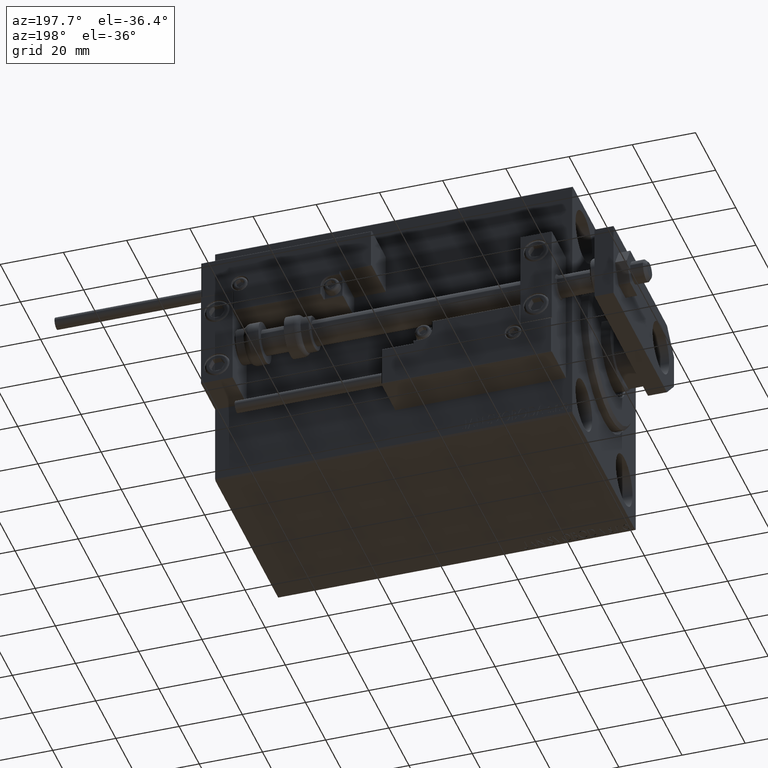
[diagram: clean part render]
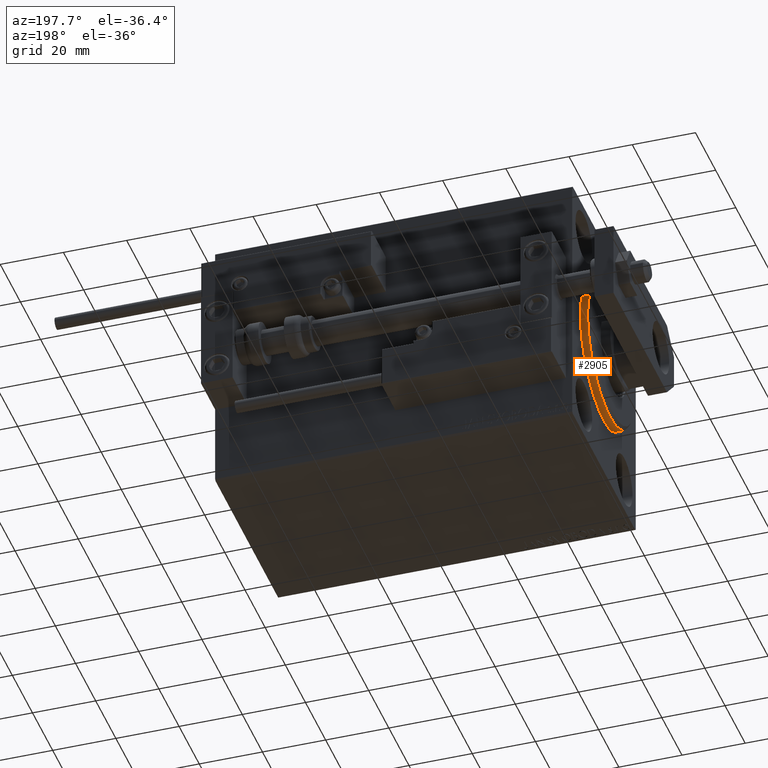
[diagram: same view with one face highlighted and labeled with its STEP entity id]
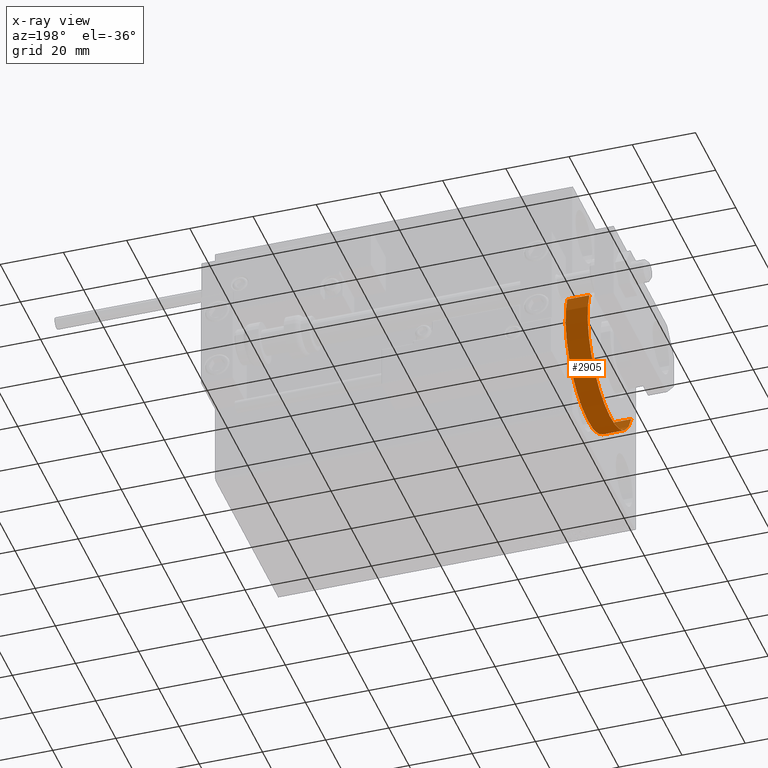
[diagram: x-ray of the same camera — body ghosted, the highlighted face saturated]
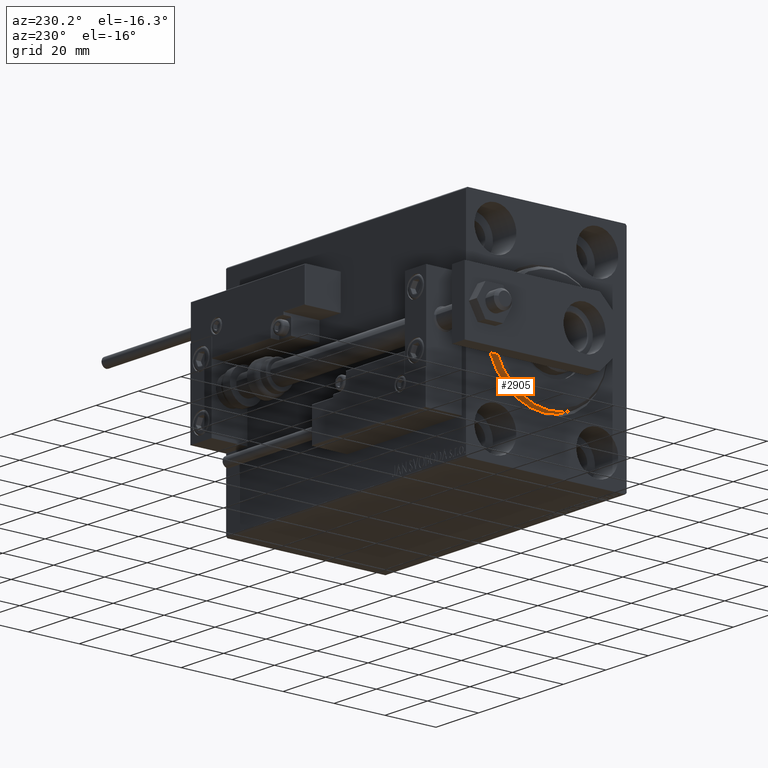
[diagram: same view with one face highlighted and labeled with its STEP entity id]
A machine part, auxiliary view. The second image highlights one B-rep face of the part: STEP entity #2905.
The next image is the same camera in x-ray: the body ghosted, the highlighted face saturated — about 0% of this face is hidden behind the body in this view.
A second angle (auxiliary view) of the same face is appended — the face is thin or edge-on in the first view.
In plain terms, the highlighted cylindrical surface (partial cylindrical patch) has radius 22.5 mm, axis along (1, 0, 0).
Its self-contained STEP definition (entity closure, byte-faithful):
#189 = CARTESIAN_POINT ( 'NONE',  ( 1.999999999999999112, 0.000000000000000000, 22.50000000000000355 ) ) ;
#611 = ORIENTED_EDGE ( 'NONE', *, *, #38400, .F. ) ;
#1401 = ORIENTED_EDGE ( 'NONE', *, *, #7646, .F. ) ;
#2905 = ADVANCED_FACE ( 'NONE', ( #16075 ), #30789, .T. ) ;
#3340 = CARTESIAN_POINT ( 'NONE',  ( 3.000000000000000000, 2.755455298081545172E-15, -22.50000000000000355 ) ) ;
#3591 = EDGE_CURVE ( 'NONE', #11106, #38112, #35308, .T. ) ;
#6888 = LINE ( 'NONE', #3340, #45044 ) ;
#7646 = EDGE_CURVE ( 'NONE', #11106, #46349, #35590, .T. ) ;
#8687 = CARTESIAN_POINT ( 'NONE',  ( 1.999999999999999112, 2.755455298081545172E-15, -22.50000000000000355 ) ) ;
#11106 = VERTEX_POINT ( 'NONE', #189 ) ;
#11517 = DIRECTION ( 'NONE',  ( -1.000000000000000000, -0.000000000000000000, -0.000000000000000000 ) ) ;
#11831 = DIRECTION ( 'NONE',  ( -1.000000000000000000, 0.000000000000000000, 0.000000000000000000 ) ) ;
#16036 = VECTOR ( 'NONE', #31797, 1000.000000000000000 ) ;
#16075 = FACE_OUTER_BOUND ( 'NONE', #17284, .T. ) ;
#16347 = CARTESIAN_POINT ( 'NONE',  ( 3.000000000000000000, 0.000000000000000000, 22.50000000000000355 ) ) ;
#16893 = EDGE_CURVE ( 'NONE', #38112, #38512, #6888, .T. ) ;
#17284 = EDGE_LOOP ( 'NONE', ( #29211, #33321, #611, #1401 ) ) ;
#20279 = DIRECTION ( 'NONE',  ( -1.000000000000000000, 0.000000000000000000, 0.000000000000000000 ) ) ;
#20510 = AXIS2_PLACEMENT_3D ( 'NONE', #25073, #20279, #20773 ) ;
#20773 = DIRECTION ( 'NONE',  ( 0.000000000000000000, 0.000000000000000000, 1.000000000000000000 ) ) ;
#21959 = CARTESIAN_POINT ( 'NONE',  ( -5.000000000000000000, 0.000000000000000000, 22.50000000000000355 ) ) ;
#25073 = CARTESIAN_POINT ( 'NONE',  ( -5.000000000000000000, 0.000000000000000000, 0.000000000000000000 ) ) ;
#25578 = AXIS2_PLACEMENT_3D ( 'NONE', #46235, #11517, #42433 ) ;
#26894 = DIRECTION ( 'NONE',  ( -1.000000000000000000, -0.000000000000000000, -0.000000000000000000 ) ) ;
#29211 = ORIENTED_EDGE ( 'NONE', *, *, #3591, .T. ) ;
#30789 = CYLINDRICAL_SURFACE ( 'NONE', #25578, 22.50000000000000355 ) ;
#31797 = DIRECTION ( 'NONE',  ( -1.000000000000000000, -0.000000000000000000, -0.000000000000000000 ) ) ;
#33321 = ORIENTED_EDGE ( 'NONE', *, *, #16893, .T. ) ;
#33694 = CARTESIAN_POINT ( 'NONE',  ( -5.000000000000000000, 2.755455298081545172E-15, -22.50000000000000355 ) ) ;
#35308 = CIRCLE ( 'NONE', #39392, 22.50000000000000355 ) ;
#35590 = LINE ( 'NONE', #16347, #16036 ) ;
#38112 = VERTEX_POINT ( 'NONE', #8687 ) ;
#38400 = EDGE_CURVE ( 'NONE', #46349, #38512, #44822, .T. ) ;
#38512 = VERTEX_POINT ( 'NONE', #33694 ) ;
#39392 = AXIS2_PLACEMENT_3D ( 'NONE', #43491, #11831, #47300 ) ;
#42433 = DIRECTION ( 'NONE',  ( 0.000000000000000000, 0.000000000000000000, 1.000000000000000000 ) ) ;
#43491 = CARTESIAN_POINT ( 'NONE',  ( 1.999999999999999112, 0.000000000000000000, 0.000000000000000000 ) ) ;
#44822 = CIRCLE ( 'NONE', #20510, 22.50000000000000355 ) ;
#45044 = VECTOR ( 'NONE', #26894, 1000.000000000000000 ) ;
#46235 = CARTESIAN_POINT ( 'NONE',  ( 3.000000000000000000, 0.000000000000000000, 0.000000000000000000 ) ) ;
#46349 = VERTEX_POINT ( 'NONE', #21959 ) ;
#47300 = DIRECTION ( 'NONE',  ( 0.000000000000000000, 0.000000000000000000, -1.000000000000000000 ) ) ;